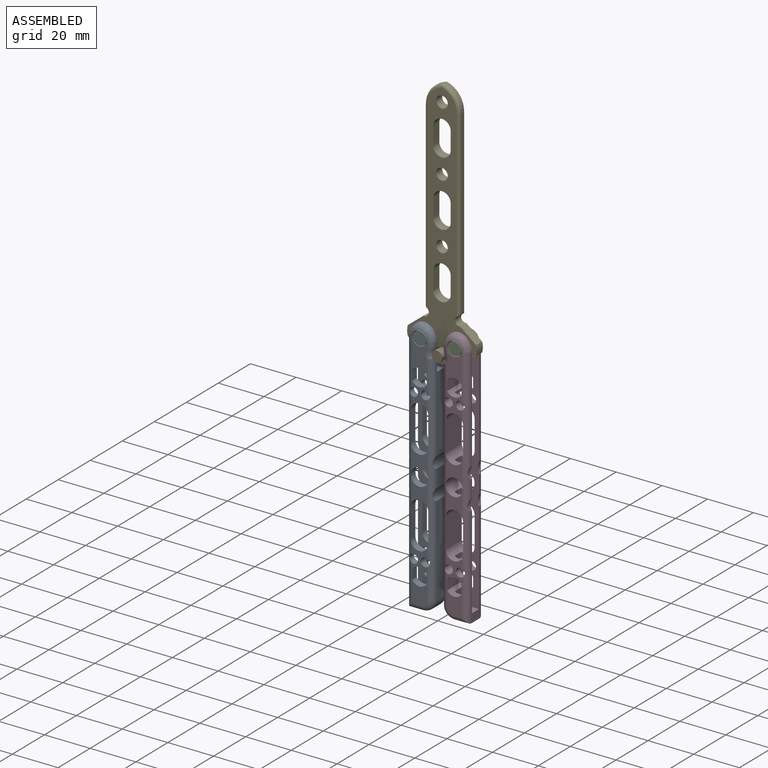
[diagram: assembled view]
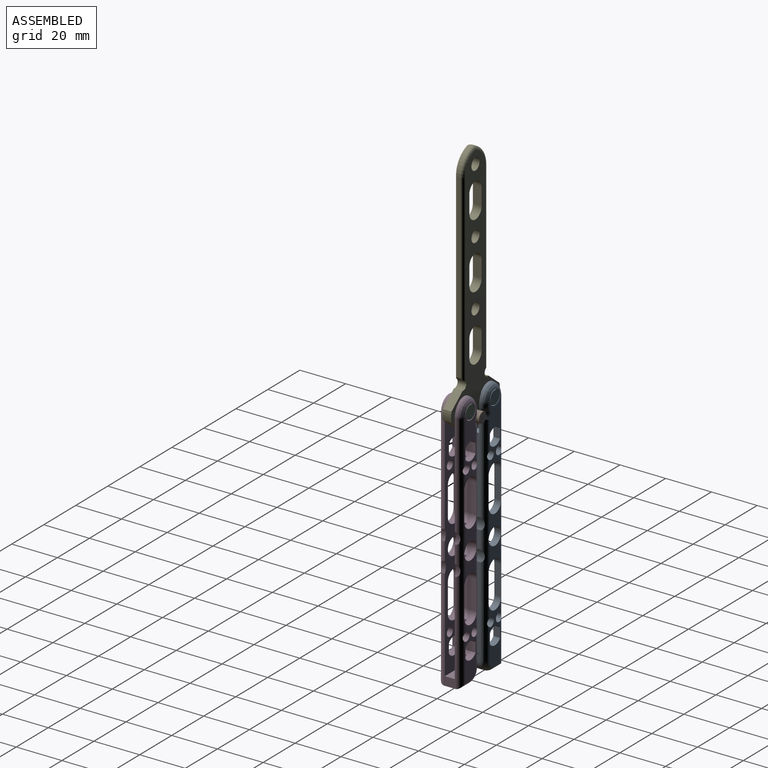
[diagram: assembled view, second angle]
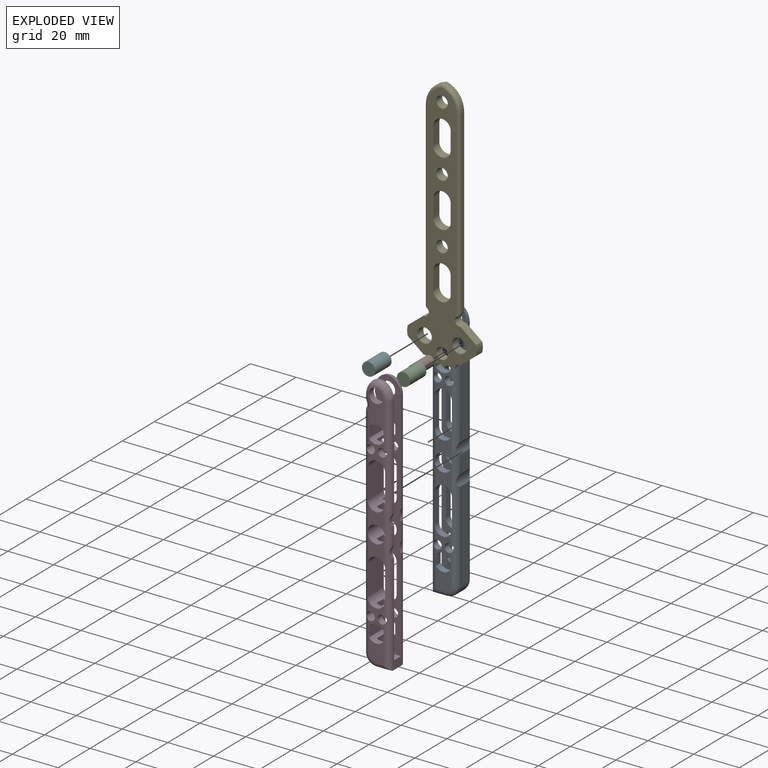
[diagram: exploded view]
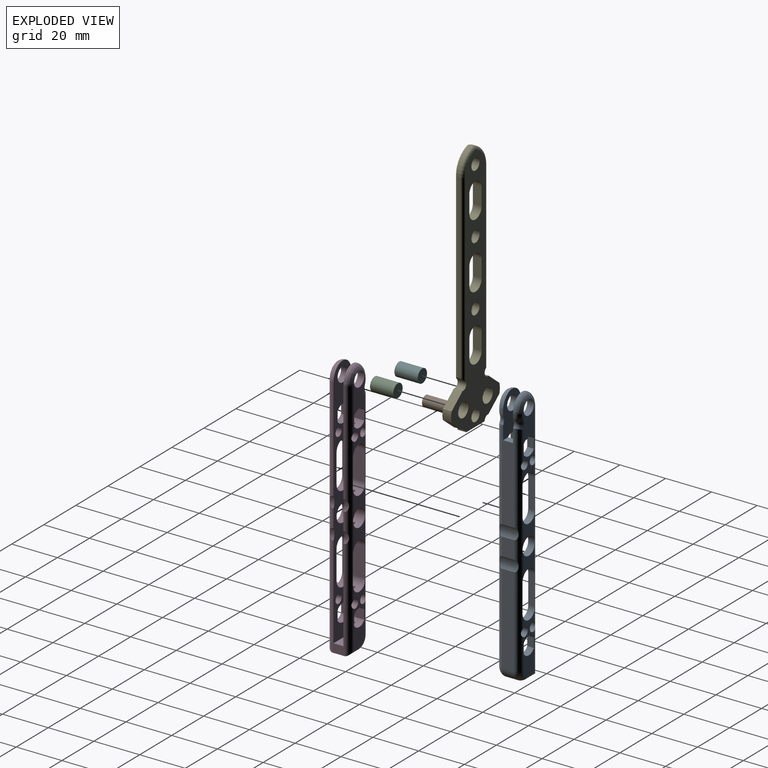
[diagram: exploded view, second angle]
ASSEMBLY  parts=6 mates=5
PART A: 104 faces, bbox 11.9x10.9x113.9 mm
  f0: plane 9.12x6.35mm, normal (0,-1,0), area 48.9mm2, adj f68,f70,f72,f74,f99
  f1: plane 9.12x6.35mm, normal (0,1,0), area 48.9mm2, adj f79,f81,f83,f85,f99
  f2: plane 6.66x4.32mm, normal (-1,0,0), area 28.7mm2, adj f32,f33,f35,f99
  f3: plane 12.78x6.35mm, normal (0,1,0), area 59.1mm2, adj f31,f77,f79,f82,f84,f85,f86,f87
  f4: plane 12.78x6.35mm, normal (0,-1,0), area 59.1mm2, adj f28,f66,f68,f69,f71,f73,f74,f75
  f5: plane 39.25x5.08mm, normal (1,0,0), area 199.4mm2, adj f44,f74,f85,f89
  f6: plane 7.78x5.08mm, normal (1,0,0), area 39.5mm2, adj f74,f85,f88,f89
  f7: plane 44.33x5.08mm, normal (-1,0,0), area 50.2mm2, adj f30,f32,f33,f35,f68,f79,f91,f93
  f8: plane 7.78x0.38mm, normal (-1,0,0), area 3mm2, adj f32,f79,f90,f91
  f9: plane 7.78x0.38mm, normal (-1,0,0), area 3mm2, adj f33,f68,f92,f93
  f10: plane 44.74x0.38mm, normal (-1,0,0), area 17mm2, adj f32,f38,f79,f90
  f11: plane 9.76x6.35mm, normal (0,1,0), area 30.6mm2, adj f52,f57,f61,f79,f85,f95
  f12: plane 8.49x6.35mm, normal (0,1,0), area 38.7mm2, adj f50,f53,f79,f85
  f13: plane 8.49x6.35mm, normal (0,1,0), area 38.7mm2, adj f46,f50,f79,f85
  f14: plane 9.76x6.35mm, normal (0,-1,0), area 30.6mm2, adj f47,f56,f58,f68,f74,f100
  f15: plane 8.49x6.35mm, normal (0,-1,0), area 38.7mm2, adj f46,f50,f68,f74
  f16: plane 8.49x6.35mm, normal (0,-1,0), area 38.7mm2, adj f50,f53,f68,f74
  f17: plane 4.32x1.25mm, normal (-1,0,0), area 5.4mm2, adj f32,f33,f57,f95
  f18: plane 4.32x2.52mm, normal (-1,0,0), area 10.9mm2, adj f32,f33,f47,f56
  f19: plane 9.76x6.35mm, normal (0,1,0), area 30.6mm2, adj f47,f56,f60,f79,f85,f100
  f20: plane 9.76x6.35mm, normal (0,-1,0), area 30.6mm2, adj f52,f57,f59,f68,f74,f95
  f21: plane 4.32x2.52mm, normal (-1,0,0), area 10.9mm2, adj f32,f33,f52,f57
  f22: plane 6.1x4.32mm, normal (-1,0,0), area 26.3mm2, adj f32,f33,f50,f53
  f23: plane 6.1x4.32mm, normal (-1,0,0), area 26.3mm2, adj f32,f33,f46,f50
  f24: plane 0.76x0.38mm, normal (1,0,0), area 0.3mm2, adj f33,f36,f43,f71
  f25: plane 0.76x0.38mm, normal (1,0,0), area 0.3mm2, adj f32,f39,f42,f84
  f26: plane 4.32x3.07mm, normal (0,0,1), area 13.3mm2, adj f27,f32,f33,f94
  f27: plane 39.25x5.08mm, normal (1,0,0), area 173.7mm2, adj f26,f32,f33,f40,f41,f74,f85,f88
  f28: cylinder r=3.17mm len=6.35mm, axis (0,-1,0), area 58.3mm2, adj f4,f33,f64,f65,f67
  f29: plane 44.74x0.38mm, normal (-1,0,0), area 17mm2, adj f33,f37,f68,f92
  f30: plane 6.35x5.08mm, normal (0,0,-1), area 32.3mm2, adj f7,f44,f70,f81
  f31: cylinder r=3.17mm len=6.35mm, axis (0,-1,0), area 58.3mm2, adj f3,f32,f76,f78,f80
  f32: plane 109.63x11.43mm, normal (0,-1,0), area 495.9mm2, adj f2,f7,f8,f10,f17,f18,f21,f22
  f33: plane 109.63x11.43mm, normal (0,1,0), area 495.9mm2, adj f2,f7,f9,f17,f18,f21,f22,f23
  f34: plane 4.32x1.25mm, normal (-1,0,0), area 5.4mm2, adj f32,f33,f56,f100
  f35: plane 7.62x4.32mm, normal (0,0,1), area 32.9mm2, adj f2,f7,f32,f33
  f36: cylinder r=7.62mm len=5.04mm, axis (0,1,0), area 2.2mm2, adj f24,f33,f63,f67,f69
  f37: cylinder r=7.62mm len=5.04mm, axis (0,-1,0), area 2.2mm2, adj f29,f33,f63,f64,f66
  f38: cylinder r=7.62mm len=5.04mm, axis (0,-1,0), area 2.2mm2, adj f10,f32,f62,f76,f77
  f39: cylinder r=7.62mm len=5.04mm, axis (0,1,0), area 2.2mm2, adj f25,f32,f62,f80,f82
  f40: cylinder r=2.54mm len=2.7mm, axis (0,1,0), area 1.1mm2, adj f27,f33,f43,f75
  f41: cylinder r=2.54mm len=2.7mm, axis (0,1,0), area 1.1mm2, adj f27,f32,f42,f87
  f42: cylinder r=5.08mm len=2.03mm, axis (0,1,0), area 0.8mm2, adj f25,f32,f41,f86
  f43: cylinder r=5.08mm len=2.03mm, axis (0,1,0), area 0.8mm2, adj f24,f33,f40,f73
  f44: cylinder r=5.08mm len=5.08mm, axis (0,-1,0), area 40.5mm2, adj f5,f30,f72,f83
  f45: plane 12.7x2.84mm, normal (1,0,0), area 36.1mm2, adj f32,f46,f47,f79
  f46: cylinder r=3.81mm len=10.16mm, axis (0,1,0), area 86.8mm2, adj f13,f15,f23,f32,f33,f45,f48,f49
  f47: cylinder r=3.81mm len=10.16mm, axis (0,1,0), area 86.8mm2, adj f14,f18,f19,f32,f33,f45,f48,f49
  f48: plane 12.7x2.84mm, normal (1,0,0), area 36.1mm2, adj f33,f46,f47,f68
  f49: plane 12.7x10mm, normal (-1,0,0), area 127mm2, adj f46,f47,f74,f85
  f50: cylinder r=3.81mm len=10.16mm, axis (0,1,0), area 173.5mm2, adj f12,f13,f15,f16,f22,f23,f32,f33
  f51: plane 12.7x2.84mm, normal (1,0,0), area 36.1mm2, adj f32,f52,f53,f79
  f52: cylinder r=3.81mm len=10.16mm, axis (0,1,0), area 86.8mm2, adj f11,f20,f21,f32,f33,f51,f54,f55
  f53: cylinder r=3.81mm len=10.16mm, axis (0,1,0), area 86.8mm2, adj f12,f16,f22,f32,f33,f51,f54,f55
  f54: plane 12.7x2.84mm, normal (1,0,0), area 36.1mm2, adj f33,f52,f53,f68
  f55: plane 12.7x10mm, normal (-1,0,0), area 127mm2, adj f52,f53,f74,f85
  f56: cylinder r=1.91mm len=10.16mm, axis (0,1,0), area 99.7mm2, adj f14,f18,f19,f32,f33,f34,f74,f85
  f57: cylinder r=1.91mm len=10.16mm, axis (0,1,0), area 99.7mm2, adj f11,f17,f20,f21,f32,f33,f74,f85
  f58: cylinder r=1.91mm len=3.81mm, axis (0,1,0), area 34.2mm2, adj f14,f33,f68
  f59: cylinder r=1.91mm len=3.81mm, axis (0,1,0), area 34.2mm2, adj f20,f33,f68
  f60: cylinder r=1.91mm len=3.81mm, axis (0,1,0), area 34.2mm2, adj f19,f32,f79
  f61: cylinder r=1.91mm len=3.81mm, axis (0,1,0), area 34.2mm2, adj f11,f32,f79
  f62: cylinder r=5.08mm len=7.62mm, axis (0,-1,0), area 3.5mm2, adj f32,f38,f39,f78
  f63: cylinder r=5.08mm len=7.62mm, axis (0,1,0), area 3.5mm2, adj f33,f36,f37,f65
  f64: bspline ~5.8x3.9mm, area 14.8mm2, adj f28,f37,f65,f66
  f65: bspline ~7.62x3.14mm, area 26.8mm2, adj f28,f63,f64,f67
  f66: torus R=5.08mm, axis (0,-1,0), area 3.7mm2, adj f4,f37,f64,f68
  f67: bspline ~5.94x3.85mm, area 14.8mm2, adj f28,f36,f65,f69
  f68: cylinder r=2.54mm len=106.68mm, axis (0,0,-1), area 379.1mm2, adj f0,f4,f7,f9,f14,f15,f16,f20
  f69: torus R=5.08mm, axis (0,-1,0), area 3.7mm2, adj f4,f36,f67,f71
  f70: cylinder r=2.54mm len=6.35mm, axis (1,0,0), area 21.7mm2, adj f0,f30,f68,f72
  f71: cylinder r=2.54mm len=2.54mm, axis (0,0,1), area 3.1mm2, adj f4,f24,f69,f73
  f72: torus R=2.54mm, axis (0,-1,0), area 26.1mm2, adj f0,f44,f70,f74
  f73: torus R=2.54mm, axis (0,-1,0), area 6.8mm2, adj f4,f43,f71,f75
  f74: cylinder r=2.54mm len=96.11mm, axis (0,0,1), area 339.4mm2, adj f0,f4,f5,f6,f14,f15,f16,f20
  f75: torus R=5.08mm, axis (0,-1,0), area 14.1mm2, adj f4,f40,f73,f74
  f76: bspline ~5.94x3.85mm, area 14.8mm2, adj f31,f38,f77,f78
  f77: torus R=5.08mm, axis (0,-1,0), area 3.7mm2, adj f3,f38,f76,f79
  f78: bspline ~7.62x3.14mm, area 26.8mm2, adj f31,f62,f76,f80
  f79: cylinder r=2.54mm len=106.68mm, axis (0,0,1), area 379.1mm2, adj f1,f3,f7,f8,f10,f11,f12,f13
  f80: bspline ~5.8x3.9mm, area 14.8mm2, adj f31,f39,f78,f82
  f81: cylinder r=2.54mm len=6.35mm, axis (-1,0,0), area 21.7mm2, adj f1,f30,f79,f83
  f82: torus R=5.08mm, axis (0,-1,0), area 3.7mm2, adj f3,f39,f80,f84
  f83: torus R=2.54mm, axis (0,-1,0), area 26.1mm2, adj f1,f44,f81,f85
  f84: cylinder r=2.54mm len=2.54mm, axis (0,0,-1), area 3.1mm2, adj f3,f25,f82,f86
  f85: cylinder r=2.54mm len=96.11mm, axis (0,0,-1), area 339.4mm2, adj f1,f3,f5,f6,f11,f12,f13,f19
  f86: torus R=2.54mm, axis (0,-1,0), area 6.8mm2, adj f3,f42,f84,f87
  f87: torus R=5.08mm, axis (0,-1,0), area 14.1mm2, adj f3,f41,f85,f86
  f88: cylinder r=5.08mm len=8.44mm, axis (0,1,0), area 39.8mm2, adj f6,f27,f74,f85
  f89: cylinder r=5.08mm len=8.44mm, axis (0,1,0), area 39.8mm2, adj f5,f6,f74,f85
  f90: cylinder r=5.08mm len=4.92mm, axis (0,1,0), area 8.8mm2, adj f8,f10,f32,f79
  f91: cylinder r=5.08mm len=4.92mm, axis (0,1,0), area 8.8mm2, adj f7,f8,f32,f79
  f92: cylinder r=5.08mm len=4.92mm, axis (0,1,0), area 8.8mm2, adj f9,f29,f33,f68
  f93: cylinder r=5.08mm len=4.92mm, axis (0,1,0), area 8.8mm2, adj f7,f9,f33,f68
  f94: cylinder r=3.81mm len=10.16mm, axis (0,-1,0), area 47.5mm2, adj f3,f4,f26,f32,f33,f96,f97,f98
  f95: cylinder r=3.81mm len=10.16mm, axis (0,-1,0), area 51.4mm2, adj f11,f17,f20,f32,f33,f96,f97,f98
  f96: plane 4.21x2.92mm, normal (1,0,0), area 12.3mm2, adj f32,f79,f94,f95
  f97: plane 10.16x4.21mm, normal (-1,0,0), area 42.8mm2, adj f74,f85,f94,f95
  f98: plane 4.21x2.92mm, normal (1,0,0), area 12.3mm2, adj f33,f68,f94,f95
  f99: cylinder r=3.81mm len=10.16mm, axis (0,-1,0), area 51.4mm2, adj f0,f1,f2,f32,f33,f101,f102,f103
  f100: cylinder r=3.81mm len=10.16mm, axis (0,-1,0), area 51.4mm2, adj f14,f19,f32,f33,f34,f101,f102,f103
  f101: plane 4.21x2.92mm, normal (1,0,0), area 12.3mm2, adj f32,f79,f99,f100
  f102: plane 4.21x2.92mm, normal (1,0,0), area 12.3mm2, adj f33,f68,f99,f100
  f103: plane 10.16x4.21mm, normal (-1,0,0), area 42.8mm2, adj f74,f85,f99,f100
PART B: 3 faces, bbox 4.6x10.2x4.6 mm
  f0: cylinder r=2.29mm len=10.16mm, axis (0,-1,0), area 145.9mm2, adj f1,f2
  f1: plane 4.57x4.57mm, normal (0,1,0), area 16.4mm2, adj f0
  f2: plane 4.57x4.57mm, normal (0,-1,0), area 16.4mm2, adj f0
PART C: 3 faces, bbox 5.8x10.2x5.8 mm
  f0: cylinder r=2.92mm len=10.16mm, axis (0,-1,0), area 186.5mm2, adj f1,f2
  f1: plane 5.84x5.84mm, normal (0,1,0), area 26.8mm2, adj f0
  f2: plane 5.84x5.84mm, normal (0,-1,0), area 26.8mm2, adj f0
PART D: same geometry as A
PART E: 49 faces, bbox 30.5x3.8x111.6 mm
  f0: plane 109.48x30.48mm, normal (0,1,0), area 1092mm2, adj f2,f3,f4,f5,f6,f8,f9,f11
  f1: plane 109.48x30.48mm, normal (0,-1,0), area 1092mm2, adj f2,f3,f4,f5,f6,f8,f9,f11
  f2: cylinder r=7.62mm len=4.31mm, axis (0,-1,0), area 16.6mm2, adj f0,f1,f16,f17
  f3: cylinder r=7.62mm len=3.81mm, axis (0,-1,0), area 1.9mm2, adj f0,f1,f15,f16
  f4: cylinder r=7.62mm len=4.31mm, axis (0,-1,0), area 16.6mm2, adj f0,f1,f19,f20
  f5: cylinder r=7.62mm len=3.81mm, axis (0,-1,0), area 1.9mm2, adj f0,f1,f6,f19
  f6: cylinder r=1.91mm len=3.81mm, axis (0,-1,0), area 11.4mm2, adj f0,f1,f5,f18
  f7: plane 79.01x1.27mm, normal (-1,0,0), area 100.3mm2, adj f22,f41,f43,f45
  f8: cylinder r=7.62mm len=3.81mm, axis (0,-1,0), area 1.9mm2, adj f0,f1,f13,f17
  f9: cylinder r=7.62mm len=3.81mm, axis (0,-1,0), area 1.9mm2, adj f0,f1,f14,f20
  f10: plane 79.01x1.27mm, normal (1,0,0), area 100.3mm2, adj f23,f42,f44,f46
  f11: cylinder r=3.17mm len=6.35mm, axis (0,-1,0), area 76mm2, adj f0,f1
  f12: cylinder r=3.17mm len=6.35mm, axis (0,-1,0), area 76mm2, adj f0,f1
  f13: cylinder r=1.91mm len=3.81mm, axis (0,-1,0), area 11.4mm2, adj f0,f1,f8,f18
  f14: cylinder r=1.91mm len=3.81mm, axis (0,-1,0), area 19.8mm2, adj f0,f1,f9,f42,f44,f46
  f15: cylinder r=1.91mm len=3.81mm, axis (0,-1,0), area 19.8mm2, adj f0,f1,f3,f41,f43,f45
  f16: plane 6.81x5.45mm, normal (-0.62,0,0.78), area 33.2mm2, adj f0,f1,f2,f3
  f17: plane 6.81x5.45mm, normal (-0.62,0,-0.78), area 33.2mm2, adj f0,f1,f2,f8
  f18: plane 11.43x3.81mm, normal (0,0,-1), area 43.5mm2, adj f0,f1,f6,f13
  f19: plane 6.81x5.45mm, normal (0.62,0,-0.78), area 33.2mm2, adj f0,f1,f4,f5
  f20: plane 6.81x5.45mm, normal (0.62,0,0.78), area 33.2mm2, adj f0,f1,f4,f9
  f21: cylinder r=2.54mm len=5.08mm, axis (0,-1,0), area 60.8mm2, adj f0,f1
  f22: cylinder r=10.16mm len=9.84mm, axis (0,1,0), area 17mm2, adj f7,f23,f39,f47
  f23: cylinder r=10.16mm len=9.84mm, axis (0,-1,0), area 17mm2, adj f10,f22,f40,f48
  f24: plane 7.62x3.81mm, normal (1,0,0), area 29mm2, adj f0,f1,f25,f27
  f25: cylinder r=3.81mm len=7.62mm, axis (0,-1,0), area 45.6mm2, adj f0,f1,f24,f26
  f26: plane 7.62x3.81mm, normal (-1,0,0), area 29mm2, adj f0,f1,f25,f27
  f27: cylinder r=3.81mm len=7.62mm, axis (0,-1,0), area 45.6mm2, adj f0,f1,f24,f26
  f28: plane 7.62x3.81mm, normal (1,0,0), area 29mm2, adj f0,f1,f29,f31
  f29: cylinder r=3.81mm len=7.62mm, axis (0,-1,0), area 45.6mm2, adj f0,f1,f28,f30
  f30: plane 7.62x3.81mm, normal (-1,0,0), area 29mm2, adj f0,f1,f29,f31
  f31: cylinder r=3.81mm len=7.62mm, axis (0,-1,0), area 45.6mm2, adj f0,f1,f28,f30
  f32: plane 7.62x3.81mm, normal (1,0,0), area 29mm2, adj f0,f1,f33,f35
  f33: cylinder r=3.81mm len=7.62mm, axis (0,-1,0), area 45.6mm2, adj f0,f1,f32,f34
  f34: plane 7.62x3.81mm, normal (-1,0,0), area 29mm2, adj f0,f1,f33,f35
  f35: cylinder r=3.81mm len=7.62mm, axis (0,-1,0), area 45.6mm2, adj f0,f1,f32,f34
  f36: cylinder r=2.54mm len=5.08mm, axis (0,-1,0), area 60.8mm2, adj f0,f1
  f37: cylinder r=2.54mm len=5.08mm, axis (0,-1,0), area 60.8mm2, adj f0,f1
  f38: cylinder r=2.54mm len=5.08mm, axis (0,-1,0), area 60.8mm2, adj f0,f1
  f39: torus R=8.89mm, axis (0,-1,0), area 25.3mm2, adj f0,f22,f40,f41
  f40: torus R=8.89mm, axis (0,-1,0), area 25.3mm2, adj f0,f23,f39,f42
  f41: cylinder r=1.27mm len=80.5mm, axis (0,0,1), area 159.3mm2, adj f0,f7,f15,f39,f43
  f42: cylinder r=1.27mm len=80.5mm, axis (0,0,-1), area 159.3mm2, adj f0,f10,f14,f40,f44
  f43: cylinder r=1.27mm len=3.6mm, axis (0,-1,0), area 3.8mm2, adj f7,f15,f41,f45
  f44: cylinder r=1.27mm len=3.6mm, axis (0,-1,0), area 3.8mm2, adj f10,f14,f42,f46
  f45: cylinder r=1.27mm len=80.5mm, axis (0,0,-1), area 159.3mm2, adj f1,f7,f15,f43,f47
  f46: cylinder r=1.27mm len=80.5mm, axis (0,0,1), area 159.3mm2, adj f1,f10,f14,f44,f48
  f47: torus R=8.89mm, axis (0,-1,0), area 25.3mm2, adj f1,f22,f45,f48
  f48: torus R=8.89mm, axis (0,-1,0), area 25.3mm2, adj f1,f23,f46,f47
PART F: same geometry as C
PLACE A rot(axis=(0.02,1,-0.01),0deg) t=(-91.64,-2.93,-82.95)mm
PLACE B t=(-78.31,-2.93,19.92)mm
PLACE C t=(-70.69,-2.93,25)mm
PLACE D rot(axis=(0,0,1),180deg) t=(-64.97,7.23,-82.95)mm
PLACE E t=(-70.69,0.24,25)mm fixed
PLACE F t=(-85.93,-2.93,25)mm
MATE fastened B.f0 <-> E.f21  axis (0,-1,0) through (-78.31,2.15,19.92)mm
MATE fastened C.f0 <-> E.f12  axis (0,-1,0) through (-70.69,2.15,25)mm
MATE fastened F.f0 <-> E.f11  axis (0,-1,0) through (-85.93,2.15,25)mm
MATE revolute D.f28 <-> C.f0  axis (0,1,0) through (-70.69,-2.93,25)mm
MATE revolute A.f28 <-> F.f0  axis (0,-1,0) through (-85.93,-2.93,25)mm
